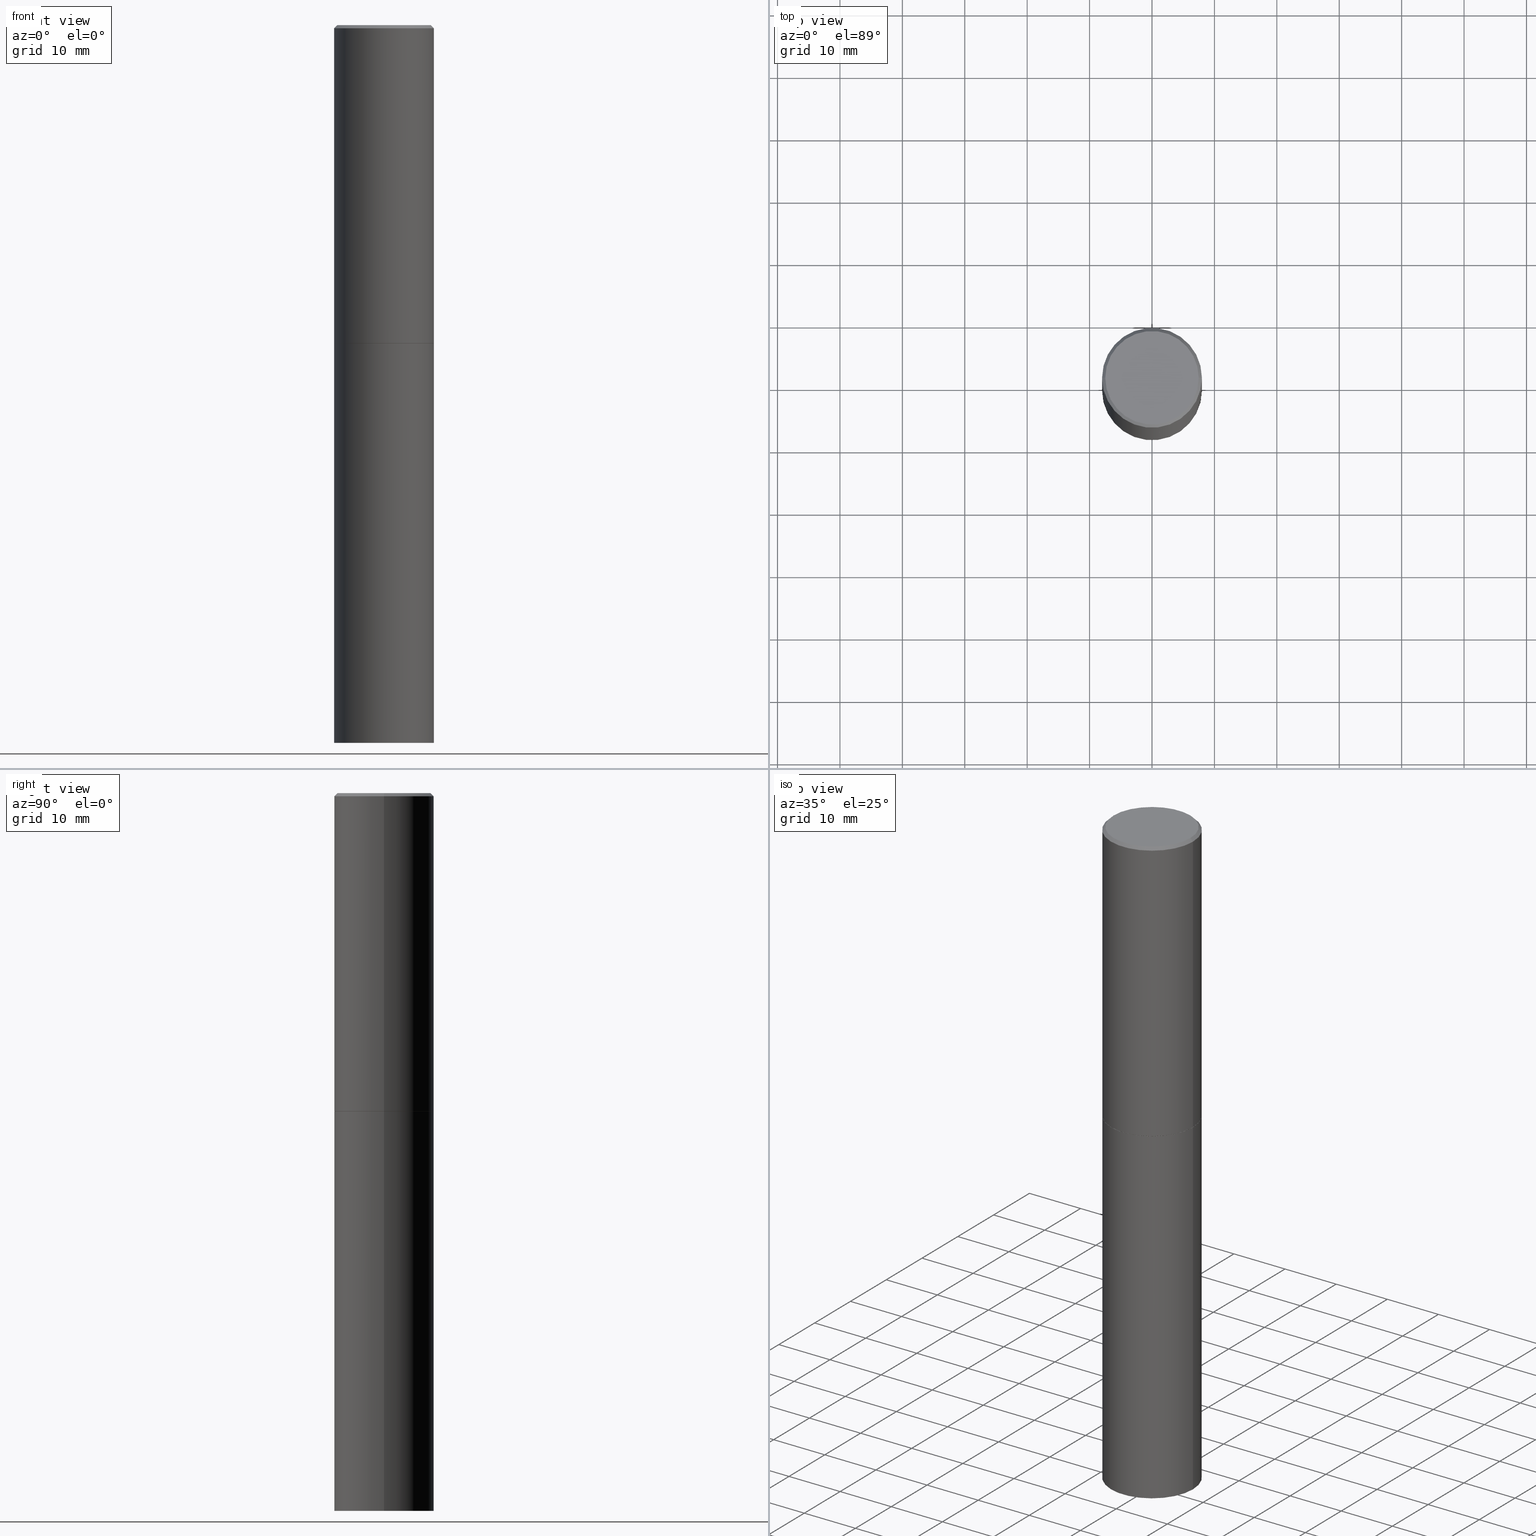
[diagram: canonical four-view strip — front | top / right | iso, engineering-drawing reading convention]
A machine part, canonical four-view strip (front | top / right | iso — engineering-drawing reading convention). The complete STEP part file that produces these views, byte-faithful:
ISO-10303-21;
HEADER;
FILE_DESCRIPTION (( 'STEP AP203' ),
    '1' );
FILE_NAME ('74772.STEP',
    '2024-05-03T15:03:44',
    ( '' ),
    ( '' ),
    'SwSTEP 2.0',
    'SolidWorks 2023',
    '' );
FILE_SCHEMA (( 'CONFIG_CONTROL_DESIGN' ));
ENDSEC;

DATA;
#1 = CIRCLE ( 'NONE', #321, 0.3149500000000000077 ) ;
#2 = CC_DESIGN_APPROVAL ( #288, ( #313 ) ) ;
#3 = DIRECTION ( 'NONE',  ( -2.445468806185136597E-29, 3.491481338843145583E-15, 1.000000000000000000 ) ) ;
#4 = ORIENTED_EDGE ( 'NONE', *, *, #283, .F. ) ;
#5 = PRODUCT_DEFINITION_SHAPE ( 'NONE', 'NONE',  #208 ) ;
#6 = CARTESIAN_POINT ( 'NONE',  ( -0.3139500000000000068, -4.774498006996092754E-15, -2.007899999999998908 ) ) ;
#7 =( CONVERSION_BASED_UNIT ( 'INCH', #145 ) LENGTH_UNIT ( ) NAMED_UNIT ( #195 ) );
#8 = AXIS2_PLACEMENT_3D ( 'NONE', #147, #63, #30 ) ;
#9 = VERTEX_POINT ( 'NONE', #72 ) ;
#10 = EDGE_CURVE ( 'NONE', #150, #314, #266, .T. ) ;
#11 = DIRECTION ( 'NONE',  ( 1.000000000000000000, -6.982962677686265922E-15, 4.876176775795935232E-29 ) ) ;
#12 = ORIENTED_EDGE ( 'NONE', *, *, #330, .T. ) ;
#13 = CC_DESIGN_APPROVAL ( #78, ( #208 ) ) ;
#14 = ORIENTED_EDGE ( 'NONE', *, *, #10, .F. ) ;
#15 = PERSON_AND_ORGANIZATION ( #29, #66 ) ;
#16 = ORIENTED_EDGE ( 'NONE', *, *, #275, .T. ) ;
#17 = PERSON_AND_ORGANIZATION ( #29, #66 ) ;
#18 = ORIENTED_EDGE ( 'NONE', *, *, #85, .T. ) ;
#19 = DATE_TIME_ROLE ( 'creation_date' ) ;
#20 = CIRCLE ( 'NONE', #31, 0.3149500000000000077 ) ;
#21 = CARTESIAN_POINT ( 'NONE',  ( 0.3149499999999997857, -2.230543471175005872E-15, -0.02000000000000006981 ) ) ;
#22 = DIRECTION ( 'NONE',  ( -2.445468806185136597E-29, 3.491481338843145583E-15, 1.000000000000000000 ) ) ;
#23 = ADVANCED_FACE ( 'NONE', ( #240 ), #285, .T. ) ;
#24 = CARTESIAN_POINT ( 'NONE',  ( 2.199284095337399917E-15, 0.3149499999999842426, -4.527600000000000513 ) ) ;
#25 = DIRECTION ( 'NONE',  ( -2.445468806185136597E-29, 3.491481338843145583E-15, 1.000000000000000000 ) ) ;
#26 = VECTOR ( 'NONE', #74, 39.37007874015748143 ) ;
#27 = DIRECTION ( 'NONE',  ( 1.000000000000000000, -6.982962677686265922E-15, 4.876176775795935793E-29 ) ) ;
#28 = CC_DESIGN_PERSON_AND_ORGANIZATION_ASSIGNMENT ( #17, #130, ( #313 ) ) ;
#29 = PERSON ( 'UNSPECIFIED', 'UNSPECIFIED', 'UNSPECIFIED', ('UNSPECIFIED'), ('UNSPECIFIED'), ('UNSPECIFIED') ) ;
#30 = DIRECTION ( 'NONE',  ( 1.000000000000000000, -6.982962677686264344E-15, 0.000000000000000000 ) ) ;
#31 = AXIS2_PLACEMENT_3D ( 'NONE', #331, #325, #109 ) ;
#32 = DIRECTION ( 'NONE',  ( 1.000000000000000000, -6.982962677686267499E-15, 4.876053491004738270E-29 ) ) ;
#33 = ADVANCED_FACE ( 'NONE', ( #232 ), #172, .T. ) ;
#34 = DIRECTION ( 'NONE',  ( 0.000000000000000000, 0.000000000000000000, 1.000000000000000000 ) ) ;
#35 = DIRECTION ( 'NONE',  ( 1.000000000000000000, -6.982962677686269866E-15, 0.000000000000000000 ) ) ;
#36 = DIRECTION ( 'NONE',  ( 1.000000000000000000, -6.982962677686266711E-15, 4.876176775795936353E-29 ) ) ;
#37 = EDGE_LOOP ( 'NONE', ( #179, #98, #99, #154 ) ) ;
#38 = APPLICATION_PROTOCOL_DEFINITION ( 'international standard', 'config_control_design', 1994, #309 ) ;
#39 = EDGE_CURVE ( 'NONE', #350, #183, #246, .T. ) ;
#40 = ORIENTED_EDGE ( 'NONE', *, *, #275, .F. ) ;
#41 = ORIENTED_EDGE ( 'NONE', *, *, #330, .F. ) ;
#42 = EDGE_CURVE ( 'NONE', #143, #169, #185, .T. ) ;
#43 = DATE_AND_TIME ( #292, #263 ) ;
#44 = AXIS2_PLACEMENT_3D ( 'NONE', #346, #216, #189 ) ;
#45 = ORIENTED_EDGE ( 'NONE', *, *, #295, .T. ) ;
#46 = APPROVAL ( #318, 'UNSPECIFIED' ) ;
#47 = ORIENTED_EDGE ( 'NONE', *, *, #39, .F. ) ;
#48 = APPROVAL_ROLE ( '' ) ;
#49 = CARTESIAN_POINT ( 'NONE',  ( 0.000000000000000000, 0.000000000000000000, 0.000000000000000000 ) ) ;
#50 = CIRCLE ( 'NONE', #312, 0.3149499999999997857 ) ;
#51 = EDGE_CURVE ( 'NONE', #150, #143, #104, .T. ) ;
#52 = CARTESIAN_POINT ( 'NONE',  ( 1.107210456688382298E-28, -1.580803090974622389E-14, -4.527599999999999625 ) ) ;
#53 = PERSON_AND_ORGANIZATION_ROLE ( 'classification_officer' ) ;
#54 = PLANE ( 'NONE',  #166 ) ;
#55 = DIRECTION ( 'NONE',  ( 1.000000000000000000, -6.982962677686265922E-15, 4.876176775795935232E-29 ) ) ;
#56 = CARTESIAN_POINT ( 'NONE',  ( 4.890937612370289799E-31, -6.982962677686315028E-17, -0.02000000000000006981 ) ) ;
#57 = CIRCLE ( 'NONE', #79, 0.3149500000000000077 ) ;
#58 = DIRECTION ( 'NONE',  ( 1.000000000000000000, -6.982962677686266711E-15, 0.000000000000000000 ) ) ;
#59 = CARTESIAN_POINT ( 'NONE',  ( 1.107210456688382298E-28, -1.580803090974622389E-14, -4.527599999999999625 ) ) ;
#60 = ADVANCED_FACE ( 'NONE', ( #114 ), #293, .F. ) ;
#61 = DIRECTION ( 'NONE',  ( 1.000000000000000000, -6.982962677686264344E-15, 0.000000000000000000 ) ) ;
#62 = CIRCLE ( 'NONE', #362, 0.3149500000000000077 ) ;
#63 = DIRECTION ( 'NONE',  ( -2.445468806185136597E-29, 3.491481338843145583E-15, 1.000000000000000000 ) ) ;
#64 = ORIENTED_EDGE ( 'NONE', *, *, #316, .F. ) ;
#65 = ADVANCED_FACE ( 'NONE', ( #272 ), #139, .T. ) ;
#66 = ORGANIZATION ( 'UNSPECIFIED', 'UNSPECIFIED', '' ) ;
#67 = ORIENTED_EDGE ( 'NONE', *, *, #42, .F. ) ;
#68 = ADVANCED_FACE ( 'NONE', ( #333 ), #54, .T. ) ;
#69 = ORIENTED_EDGE ( 'NONE', *, *, #337, .F. ) ;
#70 = ORIENTED_EDGE ( 'NONE', *, *, #326, .F. ) ;
#71 = CALENDAR_DATE ( 2024, 3, 5 ) ;
#72 = CARTESIAN_POINT ( 'NONE',  ( 0.3149500000000000077, -9.206337994261596208E-15, -2.006899999999999462 ) ) ;
#73 = PERSON_AND_ORGANIZATION ( #29, #66 ) ;
#74 = DIRECTION ( 'NONE',  ( 0.7071067811865466846, -7.319954787623252890E-15, -0.7071067811865483499 ) ) ;
#75 = DATE_TIME_ROLE ( 'classification_date' ) ;
#76 = DIRECTION ( 'NONE',  ( -2.445468806185136597E-29, 3.491481338843145583E-15, 1.000000000000000000 ) ) ;
#77 = APPROVAL_DATE_TIME ( #239, #288 ) ;
#78 = APPROVAL ( #294, 'UNSPECIFIED' ) ;
#79 = AXIS2_PLACEMENT_3D ( 'NONE', #167, #299, #327 ) ;
#80 = AXIS2_PLACEMENT_3D ( 'NONE', #305, #277, #36 ) ;
#81 = DIRECTION ( 'NONE',  ( 1.000000000000000000, -6.982962677686266711E-15, 0.000000000000000000 ) ) ;
#82 = APPROVAL_PERSON_ORGANIZATION ( #353, #46, #48 ) ;
#83 = DIRECTION ( 'NONE',  ( 1.000000000000000000, -6.982962677686269866E-15, 0.000000000000000000 ) ) ;
#84 = CARTESIAN_POINT ( 'NONE',  ( 0.3149499999999997857, -2.230543471175005872E-15, -0.02000000000000006981 ) ) ;
#85 = EDGE_CURVE ( 'NONE', #290, #314, #271, .T. ) ;
#86 = MANIFOLD_SOLID_BREP ( 'Body-Move/Copy2[1]', #328 ) ;
#87 = CARTESIAN_POINT ( 'NONE',  ( -0.3149499999999997857, 2.129454468560425389E-15, -0.02000000000000006981 ) ) ;
#88 = AXIS2_PLACEMENT_3D ( 'NONE', #59, #230, #306 ) ;
#89 = LINE ( 'NONE', #338, #206 ) ;
#90 = CARTESIAN_POINT ( 'NONE',  ( 0.3139500000000000068, -9.202846512922751623E-15, -2.007899999999998908 ) ) ;
#91 = LINE ( 'NONE', #250, #126 ) ;
#92 = VECTOR ( 'NONE', #165, 39.37007874015748143 ) ;
#93 = CARTESIAN_POINT ( 'NONE',  ( -2.087702828670439639E-46, 2.980686340760894400E-32, 8.537024980200822558E-18 ) ) ;
#94 =( NAMED_UNIT ( * ) SI_UNIT ( $, .STERADIAN. ) SOLID_ANGLE_UNIT ( ) );
#95 = EDGE_LOOP ( 'NONE', ( #47, #4 ) ) ;
#96 = CC_DESIGN_PERSON_AND_ORGANIZATION_ASSIGNMENT ( #265, #107, ( #208 ) ) ;
#97 = APPLICATION_PROTOCOL_DEFINITION ( 'international standard', 'config_control_design', 1994, #332 ) ;
#98 = ORIENTED_EDGE ( 'NONE', *, *, #283, .T. ) ;
#99 = ORIENTED_EDGE ( 'NONE', *, *, #212, .T. ) ;
#100 = ORIENTED_EDGE ( 'NONE', *, *, #316, .T. ) ;
#101 = APPROVAL_STATUS ( 'not_yet_approved' ) ;
#102 = ORIENTED_EDGE ( 'NONE', *, *, #295, .F. ) ;
#103 = COORDINATED_UNIVERSAL_TIME_OFFSET ( 5, 0, .BEHIND. ) ;
#104 = CIRCLE ( 'NONE', #117, 0.2949499999999997679 ) ;
#105 = LINE ( 'NONE', #363, #92 ) ;
#106 = DIRECTION ( 'NONE',  ( -2.445468806185136877E-29, 3.491481338843145188E-15, 1.000000000000000000 ) ) ;
#107 = PERSON_AND_ORGANIZATION_ROLE ( 'creator' ) ;
#108 = CC_DESIGN_DATE_AND_TIME_ASSIGNMENT ( #236, #75, ( #194 ) ) ;
#109 = DIRECTION ( 'NONE',  ( 1.000000000000000000, -6.982962677686266711E-15, 0.000000000000000000 ) ) ;
#110 = CLOSED_SHELL ( 'NONE', ( #270, #199, #225, #33, #23, #237, #60, #233 ) ) ;
#111 = APPROVAL_PERSON_ORGANIZATION ( #15, #288, #241 ) ;
#112 = DIRECTION ( 'NONE',  ( -2.445468806185136597E-29, 3.491481338843145583E-15, 1.000000000000000000 ) ) ;
#113 = ADVANCED_FACE ( 'NONE', ( #191 ), #276, .F. ) ;
#114 = FACE_OUTER_BOUND ( 'NONE', #151, .T. ) ;
#115 = FACE_OUTER_BOUND ( 'NONE', #176, .T. ) ;
#116 = DIRECTION ( 'NONE',  ( -2.445468806185136597E-29, 3.491481338843145583E-15, 1.000000000000000000 ) ) ;
#117 = AXIS2_PLACEMENT_3D ( 'NONE', #223, #22, #135 ) ;
#118 = LOCAL_TIME ( 11, 3, 44.00000000000000000, #153 ) ;
#119 = CARTESIAN_POINT ( 'NONE',  ( 4.910256815939134188E-29, -7.010545380263150133E-15, -2.007899999999999352 ) ) ;
#120 = EDGE_LOOP ( 'NONE', ( #228, #12 ) ) ;
#121 = CARTESIAN_POINT ( 'NONE',  ( 0.3149500000000000077, -1.800731500508351534E-14, -4.527599999999999625 ) ) ;
#122 = CIRCLE ( 'NONE', #159, 0.3139500000000000068 ) ;
#123 = EDGE_CURVE ( 'NONE', #314, #169, #50, .T. ) ;
#124 = ORIENTED_EDGE ( 'NONE', *, *, #10, .T. ) ;
#125 = EDGE_LOOP ( 'NONE', ( #261, #18, #129, #64 ) ) ;
#126 = VECTOR ( 'NONE', #203, 39.37007874015748143 ) ;
#127 =( GEOMETRIC_REPRESENTATION_CONTEXT ( 3 ) GLOBAL_UNCERTAINTY_ASSIGNED_CONTEXT ( ( #359 ) ) GLOBAL_UNIT_ASSIGNED_CONTEXT ( ( #7, #174, #94 ) ) REPRESENTATION_CONTEXT ( 'NONE', 'WORKASPACE' ) );
#128 = VERTEX_POINT ( 'NONE', #186 ) ;
#129 = ORIENTED_EDGE ( 'NONE', *, *, #355, .F. ) ;
#130 = PERSON_AND_ORGANIZATION_ROLE ( 'creator' ) ;
#131 = DIRECTION ( 'NONE',  ( -0.7071067811865466846, 2.468850131082247989E-15, -0.7071067811865483499 ) ) ;
#132 = COORDINATED_UNIVERSAL_TIME_OFFSET ( 5, 0, .BEHIND. ) ;
#133 = AXIS2_PLACEMENT_3D ( 'NONE', #149, #260, #11 ) ;
#134 = FACE_OUTER_BOUND ( 'NONE', #125, .T. ) ;
#135 = DIRECTION ( 'NONE',  ( 1.000000000000000000, -6.982962677686267499E-15, 4.876053491004738270E-29 ) ) ;
#136 = EDGE_CURVE ( 'NONE', #9, #290, #20, .T. ) ;
#137 = CARTESIAN_POINT ( 'NONE',  ( -0.3149499999999998967, 2.237854346276434801E-15, -1.549218606675782116E-29 ) ) ;
#138 = DIRECTION ( 'NONE',  ( -1.000000000000000000, 6.982962677686265922E-15, -4.876176775795935793E-29 ) ) ;
#139 = CYLINDRICAL_SURFACE ( 'NONE', #220, 0.3149500000000000077 ) ;
#140 =( LENGTH_UNIT ( ) NAMED_UNIT ( * ) SI_UNIT ( $, .METRE. ) );
#141 = CONICAL_SURFACE ( 'NONE', #8, 0.3139500000000000068, 0.7853981633975507526 ) ;
#142 = CARTESIAN_POINT ( 'NONE',  ( 4.910256815939133627E-29, -7.010545380263148555E-15, -2.007899999999998908 ) ) ;
#143 = VERTEX_POINT ( 'NONE', #324 ) ;
#144 = DIRECTION ( 'NONE',  ( 1.000000000000000000, -6.982962677686264344E-15, 0.000000000000000000 ) ) ;
#145 = LENGTH_MEASURE_WITH_UNIT ( LENGTH_MEASURE( 0.02539999999999999897 ), #140 );
#146 = CC_DESIGN_PERSON_AND_ORGANIZATION_ASSIGNMENT ( #175, #345, ( #286 ) ) ;
#147 = CARTESIAN_POINT ( 'NONE',  ( 4.910256815939133627E-29, -7.010545380263148555E-15, -2.007899999999998908 ) ) ;
#148 = CIRCLE ( 'NONE', #354, 0.3149499999999997857 ) ;
#149 = CARTESIAN_POINT ( 'NONE',  ( 0.000000000000000000, 0.000000000000000000, 0.000000000000000000 ) ) ;
#150 = VERTEX_POINT ( 'NONE', #361 ) ;
#151 = EDGE_LOOP ( 'NONE', ( #40, #70 ) ) ;
#152 = ORIENTED_EDGE ( 'NONE', *, *, #212, .F. ) ;
#153 = COORDINATED_UNIVERSAL_TIME_OFFSET ( 5, 0, .BEHIND. ) ;
#154 = ORIENTED_EDGE ( 'NONE', *, *, #300, .F. ) ;
#155 = COORDINATED_UNIVERSAL_TIME_OFFSET ( 5, 0, .BEHIND. ) ;
#156 = EDGE_CURVE ( 'NONE', #207, #128, #62, .T. ) ;
#157 = DIRECTION ( 'NONE',  ( 1.000000000000000000, -6.982962677686266711E-15, 4.876176775795936353E-29 ) ) ;
#158 = AXIS2_PLACEMENT_3D ( 'NONE', #52, #76, #163 ) ;
#159 = AXIS2_PLACEMENT_3D ( 'NONE', #336, #341, #61 ) ;
#160 = LOCAL_TIME ( 11, 3, 44.00000000000000000, #132 ) ;
#161 = CARTESIAN_POINT ( 'NONE',  ( 0.000000000000000000, 0.000000000000000000, 0.000000000000000000 ) ) ;
#162 = APPROVAL_DATE_TIME ( #351, #46 ) ;
#163 = DIRECTION ( 'NONE',  ( 1.000000000000000000, -6.982962677686269866E-15, 0.000000000000000000 ) ) ;
#164 = EDGE_CURVE ( 'NONE', #183, #128, #296, .T. ) ;
#165 = DIRECTION ( 'NONE',  ( -2.445468806185136877E-29, 3.491481338843145188E-15, 1.000000000000000000 ) ) ;
#166 = AXIS2_PLACEMENT_3D ( 'NONE', #24, #221, #301 ) ;
#167 = CARTESIAN_POINT ( 'NONE',  ( 4.907811347132949146E-29, -7.007053898924306337E-15, -2.006899999999999462 ) ) ;
#168 = CARTESIAN_POINT ( 'NONE',  ( 4.890937612370289799E-31, -6.982962677686315028E-17, -0.02000000000000006981 ) ) ;
#169 = VERTEX_POINT ( 'NONE', #21 ) ;
#170 = CC_DESIGN_PERSON_AND_ORGANIZATION_ASSIGNMENT ( #320, #53, ( #194 ) ) ;
#171 = DIRECTION ( 'NONE',  ( 1.000000000000000000, -6.982962677686264344E-15, 0.000000000000000000 ) ) ;
#172 = CONICAL_SURFACE ( 'NONE', #44, 0.3149499999999997857, 0.7853981633974471688 ) ;
#173 = CARTESIAN_POINT ( 'NONE',  ( 4.910256815939133627E-29, -7.010545380263148555E-15, -2.007899999999998908 ) ) ;
#174 =( NAMED_UNIT ( * ) PLANE_ANGLE_UNIT ( ) SI_UNIT ( $, .RADIAN. ) );
#175 = PERSON_AND_ORGANIZATION ( #29, #66 ) ;
#176 = EDGE_LOOP ( 'NONE', ( #16, #45, #235, #69 ) ) ;
#177 = AXIS2_PLACEMENT_3D ( 'NONE', #268, #244, #138 ) ;
#178 = ORIENTED_EDGE ( 'NONE', *, *, #184, .F. ) ;
#179 = ORIENTED_EDGE ( 'NONE', *, *, #164, .F. ) ;
#180 = COORDINATED_UNIVERSAL_TIME_OFFSET ( 5, 0, .BEHIND. ) ;
#181 = EDGE_LOOP ( 'NONE', ( #322, #356, #100, #289 ) ) ;
#182 = CALENDAR_DATE ( 2024, 3, 5 ) ;
#183 = VERTEX_POINT ( 'NONE', #190 ) ;
#184 = EDGE_CURVE ( 'NONE', #290, #9, #57, .T. ) ;
#185 = LINE ( 'NONE', #84, #26 ) ;
#186 = CARTESIAN_POINT ( 'NONE',  ( -0.3149500000000000077, -9.171433798728249845E-15, -2.007899999999999352 ) ) ;
#187 = CALENDAR_DATE ( 2024, 3, 5 ) ;
#188 = CONICAL_SURFACE ( 'NONE', #340, 0.3149499999999997857, 0.7853981633974471688 ) ;
#189 = DIRECTION ( 'NONE',  ( -1.000000000000000000, 6.982962677686266711E-15, 0.000000000000000000 ) ) ;
#190 = CARTESIAN_POINT ( 'NONE',  ( -0.3149500000000000077, -9.171433798728249845E-15, -4.527599999999999625 ) ) ;
#191 = FACE_OUTER_BOUND ( 'NONE', #238, .T. ) ;
#192 = VECTOR ( 'NONE', #231, 39.37007874015748143 ) ;
#193 = DIRECTION ( 'NONE',  ( -1.000000000000000000, 6.982962677686266711E-15, 0.000000000000000000 ) ) ;
#194 = SECURITY_CLASSIFICATION ( '', '', #357 ) ;
#195 = DIMENSIONAL_EXPONENTS ( 1.000000000000000000, 0.000000000000000000, 0.000000000000000000, 0.000000000000000000, 0.000000000000000000, 0.000000000000000000, 0.000000000000000000 ) ;
#196 = ADVANCED_BREP_SHAPE_REPRESENTATION ( '74772', ( #86, #198, #247 ), #127 ) ;
#197 = PLANE ( 'NONE',  #259 ) ;
#198 = MANIFOLD_SOLID_BREP ( 'Body-Move/Copy2[2]', #110 ) ;
#199 = ADVANCED_FACE ( 'NONE', ( #134 ), #242, .T. ) ;
#200 = CARTESIAN_POINT ( 'NONE',  ( 2.059624841783562486E-15, 0.2949499999999997679, -1.025543908401684563E-15 ) ) ;
#201 = VECTOR ( 'NONE', #219, 39.37007874015748143 ) ;
#202 = CC_DESIGN_PERSON_AND_ORGANIZATION_ASSIGNMENT ( #73, #211, ( #313 ) ) ;
#203 = DIRECTION ( 'NONE',  ( 0.7071067811866199593, -2.468850131083015945E-15, 0.7071067811864750752 ) ) ;
#204 = CARTESIAN_POINT ( 'NONE',  ( -0.3149499999999997857, 2.129454468560425389E-15, -0.02000000000000006981 ) ) ;
#205 = PERSON_AND_ORGANIZATION ( #29, #66 ) ;
#206 = VECTOR ( 'NONE', #303, 39.37007874015748143 ) ;
#207 = VERTEX_POINT ( 'NONE', #298 ) ;
#208 = PRODUCT_DEFINITION ( 'UNKNOWN', '', #313, #315 ) ;
#209 = ORIENTED_EDGE ( 'NONE', *, *, #123, .T. ) ;
#210 = EDGE_LOOP ( 'NONE', ( #67, #352, #124, #209 ) ) ;
#211 = PERSON_AND_ORGANIZATION_ROLE ( 'design_supplier' ) ;
#212 = EDGE_CURVE ( 'NONE', #350, #207, #105, .T. ) ;
#213 = EDGE_LOOP ( 'NONE', ( #264, #344, #256, #152 ) ) ;
#214 = SHAPE_DEFINITION_REPRESENTATION ( #5, #196 ) ;
#215 = AXIS2_PLACEMENT_3D ( 'NONE', #358, #217, #27 ) ;
#216 = DIRECTION ( 'NONE',  ( 2.445468806185136597E-29, -3.491481338843145583E-15, -1.000000000000000000 ) ) ;
#217 = DIRECTION ( 'NONE',  ( -2.438088387897960049E-29, 3.491481338843145188E-15, 1.000000000000000000 ) ) ;
#218 = CALENDAR_DATE ( 2024, 3, 5 ) ;
#219 = DIRECTION ( 'NONE',  ( -2.445468806185136877E-29, 3.491481338843145188E-15, 1.000000000000000000 ) ) ;
#220 = AXIS2_PLACEMENT_3D ( 'NONE', #49, #25, #157 ) ;
#221 = DIRECTION ( 'NONE',  ( 2.438088387897960049E-29, -3.491481338843145188E-15, -1.000000000000000000 ) ) ;
#222 = LOCAL_TIME ( 11, 3, 44.00000000000000000, #103 ) ;
#223 = CARTESIAN_POINT ( 'NONE',  ( -2.087702828670439639E-46, 2.980686340760894400E-32, 8.537024980200822558E-18 ) ) ;
#224 = LINE ( 'NONE', #339, #192 ) ;
#225 = ADVANCED_FACE ( 'NONE', ( #273 ), #188, .T. ) ;
#226 = AXIS2_PLACEMENT_3D ( 'NONE', #142, #3, #171 ) ;
#227 = CARTESIAN_POINT ( 'NONE',  ( 4.890937612370289799E-31, -6.982962677686315028E-17, -0.02000000000000006981 ) ) ;
#228 = ORIENTED_EDGE ( 'NONE', *, *, #51, .T. ) ;
#229 = DIRECTION ( 'NONE',  ( -2.445468806185136597E-29, 3.491481338843145583E-15, 1.000000000000000000 ) ) ;
#230 = DIRECTION ( 'NONE',  ( -2.445468806185136597E-29, 3.491481338843145583E-15, 1.000000000000000000 ) ) ;
#231 = DIRECTION ( 'NONE',  ( -0.7071067811866199593, 7.493145998870616062E-15, 0.7071067811864750752 ) ) ;
#232 = FACE_OUTER_BOUND ( 'NONE', #210, .T. ) ;
#233 = ADVANCED_FACE ( 'NONE', ( #364 ), #197, .F. ) ;
#234 = EDGE_LOOP ( 'NONE', ( #41, #262, #317, #14 ) ) ;
#235 = ORIENTED_EDGE ( 'NONE', *, *, #136, .F. ) ;
#236 = DATE_AND_TIME ( #187, #342 ) ;
#237 = ADVANCED_FACE ( 'NONE', ( #278 ), #274, .T. ) ;
#238 = EDGE_LOOP ( 'NONE', ( #291, #253 ) ) ;
#239 = DATE_AND_TIME ( #71, #160 ) ;
#240 = FACE_OUTER_BOUND ( 'NONE', #181, .T. ) ;
#241 = APPROVAL_ROLE ( '' ) ;
#242 = CYLINDRICAL_SURFACE ( 'NONE', #284, 0.3149499999999998967 ) ;
#243 = DATE_AND_TIME ( #182, #118 ) ;
#244 = DIRECTION ( 'NONE',  ( 2.438088387897960049E-29, -3.491481338843145188E-15, -1.000000000000000000 ) ) ;
#245 = CARTESIAN_POINT ( 'NONE',  ( 4.910256815939134188E-29, -7.010545380263150133E-15, -2.007899999999999352 ) ) ;
#246 = CIRCLE ( 'NONE', #158, 0.3149500000000000077 ) ;
#247 = AXIS2_PLACEMENT_3D ( 'NONE', #282, #34, #343 ) ;
#248 = DIRECTION ( 'NONE',  ( -2.445468806185136597E-29, 3.491481338843145583E-15, 1.000000000000000000 ) ) ;
#249 = DIRECTION ( 'NONE',  ( -2.445468806185136597E-29, 3.491481338843145583E-15, 1.000000000000000000 ) ) ;
#250 = CARTESIAN_POINT ( 'NONE',  ( 0.3139500000000000068, -9.202846512922751623E-15, -2.007899999999998908 ) ) ;
#251 = CIRCLE ( 'NONE', #88, 0.3149500000000000077 ) ;
#252 = CARTESIAN_POINT ( 'NONE',  ( -0.3149500000000000077, -1.300587416574147649E-15, -2.006899999999999462 ) ) ;
#253 = ORIENTED_EDGE ( 'NONE', *, *, #300, .T. ) ;
#254 = CC_DESIGN_DATE_AND_TIME_ASSIGNMENT ( #43, #19, ( #208 ) ) ;
#255 = DIRECTION ( 'NONE',  ( 2.445468806185136597E-29, -3.491481338843145583E-15, -1.000000000000000000 ) ) ;
#256 = ORIENTED_EDGE ( 'NONE', *, *, #156, .F. ) ;
#257 = MECHANICAL_CONTEXT ( 'NONE', #309, 'mechanical' ) ;
#258 = DIRECTION ( 'NONE',  ( 2.438088387897960049E-29, -3.491481338843145188E-15, -1.000000000000000000 ) ) ;
#259 = AXIS2_PLACEMENT_3D ( 'NONE', #200, #258, #334 ) ;
#260 = DIRECTION ( 'NONE',  ( -2.445468806185136597E-29, 3.491481338843145583E-15, 1.000000000000000000 ) ) ;
#261 = ORIENTED_EDGE ( 'NONE', *, *, #136, .T. ) ;
#262 = ORIENTED_EDGE ( 'NONE', *, *, #42, .T. ) ;
#263 = LOCAL_TIME ( 11, 3, 44.00000000000000000, #180 ) ;
#264 = ORIENTED_EDGE ( 'NONE', *, *, #39, .T. ) ;
#265 = PERSON_AND_ORGANIZATION ( #29, #66 ) ;
#266 = LINE ( 'NONE', #204, #269 ) ;
#267 = APPROVAL_DATE_TIME ( #243, #78 ) ;
#268 = CARTESIAN_POINT ( 'NONE',  ( 2.199284095337338386E-15, 0.3149499999999929578, -2.007900000000000240 ) ) ;
#269 = VECTOR ( 'NONE', #131, 39.37007874015748143 ) ;
#270 = ADVANCED_FACE ( 'NONE', ( #115 ), #141, .T. ) ;
#271 = LINE ( 'NONE', #137, #335 ) ;
#272 = FACE_OUTER_BOUND ( 'NONE', #213, .T. ) ;
#273 = FACE_OUTER_BOUND ( 'NONE', #234, .T. ) ;
#274 = CONICAL_SURFACE ( 'NONE', #226, 0.3139500000000000068, 0.7853981633975507526 ) ;
#275 = EDGE_CURVE ( 'NONE', #319, #349, #122, .T. ) ;
#276 = PLANE ( 'NONE',  #177 ) ;
#277 = DIRECTION ( 'NONE',  ( -2.445468806185136597E-29, 3.491481338843145583E-15, 1.000000000000000000 ) ) ;
#278 = FACE_OUTER_BOUND ( 'NONE', #304, .T. ) ;
#279 = CIRCLE ( 'NONE', #348, 0.2949499999999997679 ) ;
#280 = DIRECTION ( 'NONE',  ( -2.445468806185136597E-29, 3.491481338843145583E-15, 1.000000000000000000 ) ) ;
#281 = DIRECTION ( 'NONE',  ( -2.445468806185136597E-29, 3.491481338843145583E-15, 1.000000000000000000 ) ) ;
#282 = CARTESIAN_POINT ( 'NONE',  ( 0.000000000000000000, 0.000000000000000000, 0.000000000000000000 ) ) ;
#283 = EDGE_CURVE ( 'NONE', #183, #350, #251, .T. ) ;
#284 = AXIS2_PLACEMENT_3D ( 'NONE', #161, #249, #55 ) ;
#285 = CYLINDRICAL_SURFACE ( 'NONE', #133, 0.3149499999999998967 ) ;
#286 = PRODUCT ( '74772', '74772', '', ( #257 ) ) ;
#287 = ORIENTED_EDGE ( 'NONE', *, *, #337, .T. ) ;
#288 = APPROVAL ( #101, 'UNSPECIFIED' ) ;
#289 = ORIENTED_EDGE ( 'NONE', *, *, #123, .F. ) ;
#290 = VERTEX_POINT ( 'NONE', #252 ) ;
#291 = ORIENTED_EDGE ( 'NONE', *, *, #156, .T. ) ;
#292 = CALENDAR_DATE ( 2024, 3, 5 ) ;
#293 = PLANE ( 'NONE',  #215 ) ;
#294 = APPROVAL_STATUS ( 'not_yet_approved' ) ;
#295 = EDGE_CURVE ( 'NONE', #349, #290, #224, .T. ) ;
#296 = LINE ( 'NONE', #360, #201 ) ;
#297 = CIRCLE ( 'NONE', #302, 0.3139500000000000068 ) ;
#298 = CARTESIAN_POINT ( 'NONE',  ( 0.3149500000000000077, -9.209829475600440793E-15, -2.007899999999999352 ) ) ;
#299 = DIRECTION ( 'NONE',  ( -2.445468806185136597E-29, 3.491481338843145583E-15, 1.000000000000000000 ) ) ;
#300 = EDGE_CURVE ( 'NONE', #128, #207, #1, .T. ) ;
#301 = DIRECTION ( 'NONE',  ( -1.000000000000000000, 6.982962677686265922E-15, -4.876176775795935793E-29 ) ) ;
#302 = AXIS2_PLACEMENT_3D ( 'NONE', #173, #281, #144 ) ;
#303 = DIRECTION ( 'NONE',  ( -2.445468806185136877E-29, 3.491481338843145188E-15, 1.000000000000000000 ) ) ;
#304 = EDGE_LOOP ( 'NONE', ( #102, #311, #287, #178 ) ) ;
#305 = CARTESIAN_POINT ( 'NONE',  ( 0.000000000000000000, 0.000000000000000000, 0.000000000000000000 ) ) ;
#306 = DIRECTION ( 'NONE',  ( 1.000000000000000000, -6.982962677686269866E-15, 0.000000000000000000 ) ) ;
#307 = CC_DESIGN_APPROVAL ( #46, ( #194 ) ) ;
#308 = FACE_OUTER_BOUND ( 'NONE', #37, .T. ) ;
#309 = APPLICATION_CONTEXT ( 'configuration controlled 3d designs of mechanical parts and assemblies' ) ;
#310 = CC_DESIGN_SECURITY_CLASSIFICATION ( #194, ( #313 ) ) ;
#311 = ORIENTED_EDGE ( 'NONE', *, *, #326, .T. ) ;
#312 = AXIS2_PLACEMENT_3D ( 'NONE', #56, #112, #81 ) ;
#313 = PRODUCT_DEFINITION_FORMATION_WITH_SPECIFIED_SOURCE ( 'ANY', '', #286, .NOT_KNOWN. ) ;
#314 = VERTEX_POINT ( 'NONE', #87 ) ;
#315 = DESIGN_CONTEXT ( 'detailed design', #332, 'design' ) ;
#316 = EDGE_CURVE ( 'NONE', #9, #169, #89, .T. ) ;
#317 = ORIENTED_EDGE ( 'NONE', *, *, #355, .T. ) ;
#318 = APPROVAL_STATUS ( 'not_yet_approved' ) ;
#319 = VERTEX_POINT ( 'NONE', #90 ) ;
#320 = PERSON_AND_ORGANIZATION ( #29, #66 ) ;
#321 = AXIS2_PLACEMENT_3D ( 'NONE', #119, #229, #35 ) ;
#322 = ORIENTED_EDGE ( 'NONE', *, *, #85, .F. ) ;
#323 = APPROVAL_ROLE ( '' ) ;
#324 = CARTESIAN_POINT ( 'NONE',  ( 0.2949499999999997679, -2.127023677808858891E-15, 8.537024980215462707E-18 ) ) ;
#325 = DIRECTION ( 'NONE',  ( -2.445468806185136597E-29, 3.491481338843145583E-15, 1.000000000000000000 ) ) ;
#326 = EDGE_CURVE ( 'NONE', #349, #319, #297, .T. ) ;
#327 = DIRECTION ( 'NONE',  ( 1.000000000000000000, -6.982962677686266711E-15, 0.000000000000000000 ) ) ;
#328 = CLOSED_SHELL ( 'NONE', ( #65, #68, #113, #366 ) ) ;
#329 = APPROVAL_PERSON_ORGANIZATION ( #205, #78, #323 ) ;
#330 = EDGE_CURVE ( 'NONE', #143, #150, #279, .T. ) ;
#331 = CARTESIAN_POINT ( 'NONE',  ( 4.907811347132949146E-29, -7.007053898924306337E-15, -2.006899999999999462 ) ) ;
#332 = APPLICATION_CONTEXT ( 'configuration controlled 3d designs of mechanical parts and assemblies' ) ;
#333 = FACE_OUTER_BOUND ( 'NONE', #95, .T. ) ;
#334 = DIRECTION ( 'NONE',  ( -1.000000000000000000, 6.982962677686265922E-15, -4.876176775795935793E-29 ) ) ;
#335 = VECTOR ( 'NONE', #106, 39.37007874015748143 ) ;
#336 = CARTESIAN_POINT ( 'NONE',  ( 4.910256815939133627E-29, -7.010545380263148555E-15, -2.007899999999998908 ) ) ;
#337 = EDGE_CURVE ( 'NONE', #319, #9, #91, .T. ) ;
#338 = CARTESIAN_POINT ( 'NONE',  ( 0.3149499999999998967, -2.199284095337288688E-15, 1.535751875536929289E-29 ) ) ;
#339 = CARTESIAN_POINT ( 'NONE',  ( -0.3139500000000000068, -4.779796461344314367E-15, -2.007899999999998908 ) ) ;
#340 = AXIS2_PLACEMENT_3D ( 'NONE', #227, #255, #193 ) ;
#341 = DIRECTION ( 'NONE',  ( -2.445468806185136597E-29, 3.491481338843145583E-15, 1.000000000000000000 ) ) ;
#342 = LOCAL_TIME ( 11, 3, 44.00000000000000000, #155 ) ;
#343 = DIRECTION ( 'NONE',  ( 1.000000000000000000, 0.000000000000000000, 0.000000000000000000 ) ) ;
#344 = ORIENTED_EDGE ( 'NONE', *, *, #164, .T. ) ;
#345 = PERSON_AND_ORGANIZATION_ROLE ( 'design_owner' ) ;
#346 = CARTESIAN_POINT ( 'NONE',  ( 4.890937612370289799E-31, -6.982962677686315028E-17, -0.02000000000000006981 ) ) ;
#347 = PRODUCT_RELATED_PRODUCT_CATEGORY ( 'detail', '', ( #286 ) ) ;
#348 = AXIS2_PLACEMENT_3D ( 'NONE', #93, #280, #32 ) ;
#349 = VERTEX_POINT ( 'NONE', #6 ) ;
#350 = VERTEX_POINT ( 'NONE', #121 ) ;
#351 = DATE_AND_TIME ( #218, #222 ) ;
#352 = ORIENTED_EDGE ( 'NONE', *, *, #51, .F. ) ;
#353 = PERSON_AND_ORGANIZATION ( #29, #66 ) ;
#354 = AXIS2_PLACEMENT_3D ( 'NONE', #168, #116, #58 ) ;
#355 = EDGE_CURVE ( 'NONE', #169, #314, #148, .T. ) ;
#356 = ORIENTED_EDGE ( 'NONE', *, *, #184, .T. ) ;
#357 = SECURITY_CLASSIFICATION_LEVEL ( 'unclassified' ) ;
#358 = CARTESIAN_POINT ( 'NONE',  ( 4.910256815939133627E-29, -7.010545380263148555E-15, -2.007899999999998908 ) ) ;
#359 = UNCERTAINTY_MEASURE_WITH_UNIT (LENGTH_MEASURE( 1.000000000000000082E-05 ), #7, 'distance_accuracy_value', 'NONE');
#360 = CARTESIAN_POINT ( 'NONE',  ( -0.3149500000000000077, 2.237854346276435590E-15, -1.549218606675782676E-29 ) ) ;
#361 = CARTESIAN_POINT ( 'NONE',  ( -0.2949499999999997679, 2.094539655171994135E-15, 8.537024980186296424E-18 ) ) ;
#362 = AXIS2_PLACEMENT_3D ( 'NONE', #245, #248, #83 ) ;
#363 = CARTESIAN_POINT ( 'NONE',  ( 0.3149500000000000077, -2.199284095337289871E-15, 1.535751875536930130E-29 ) ) ;
#364 = FACE_OUTER_BOUND ( 'NONE', #120, .T. ) ;
#365 = CYLINDRICAL_SURFACE ( 'NONE', #80, 0.3149500000000000077 ) ;
#366 = ADVANCED_FACE ( 'NONE', ( #308 ), #365, .T. ) ;
ENDSEC;
END-ISO-10303-21;
